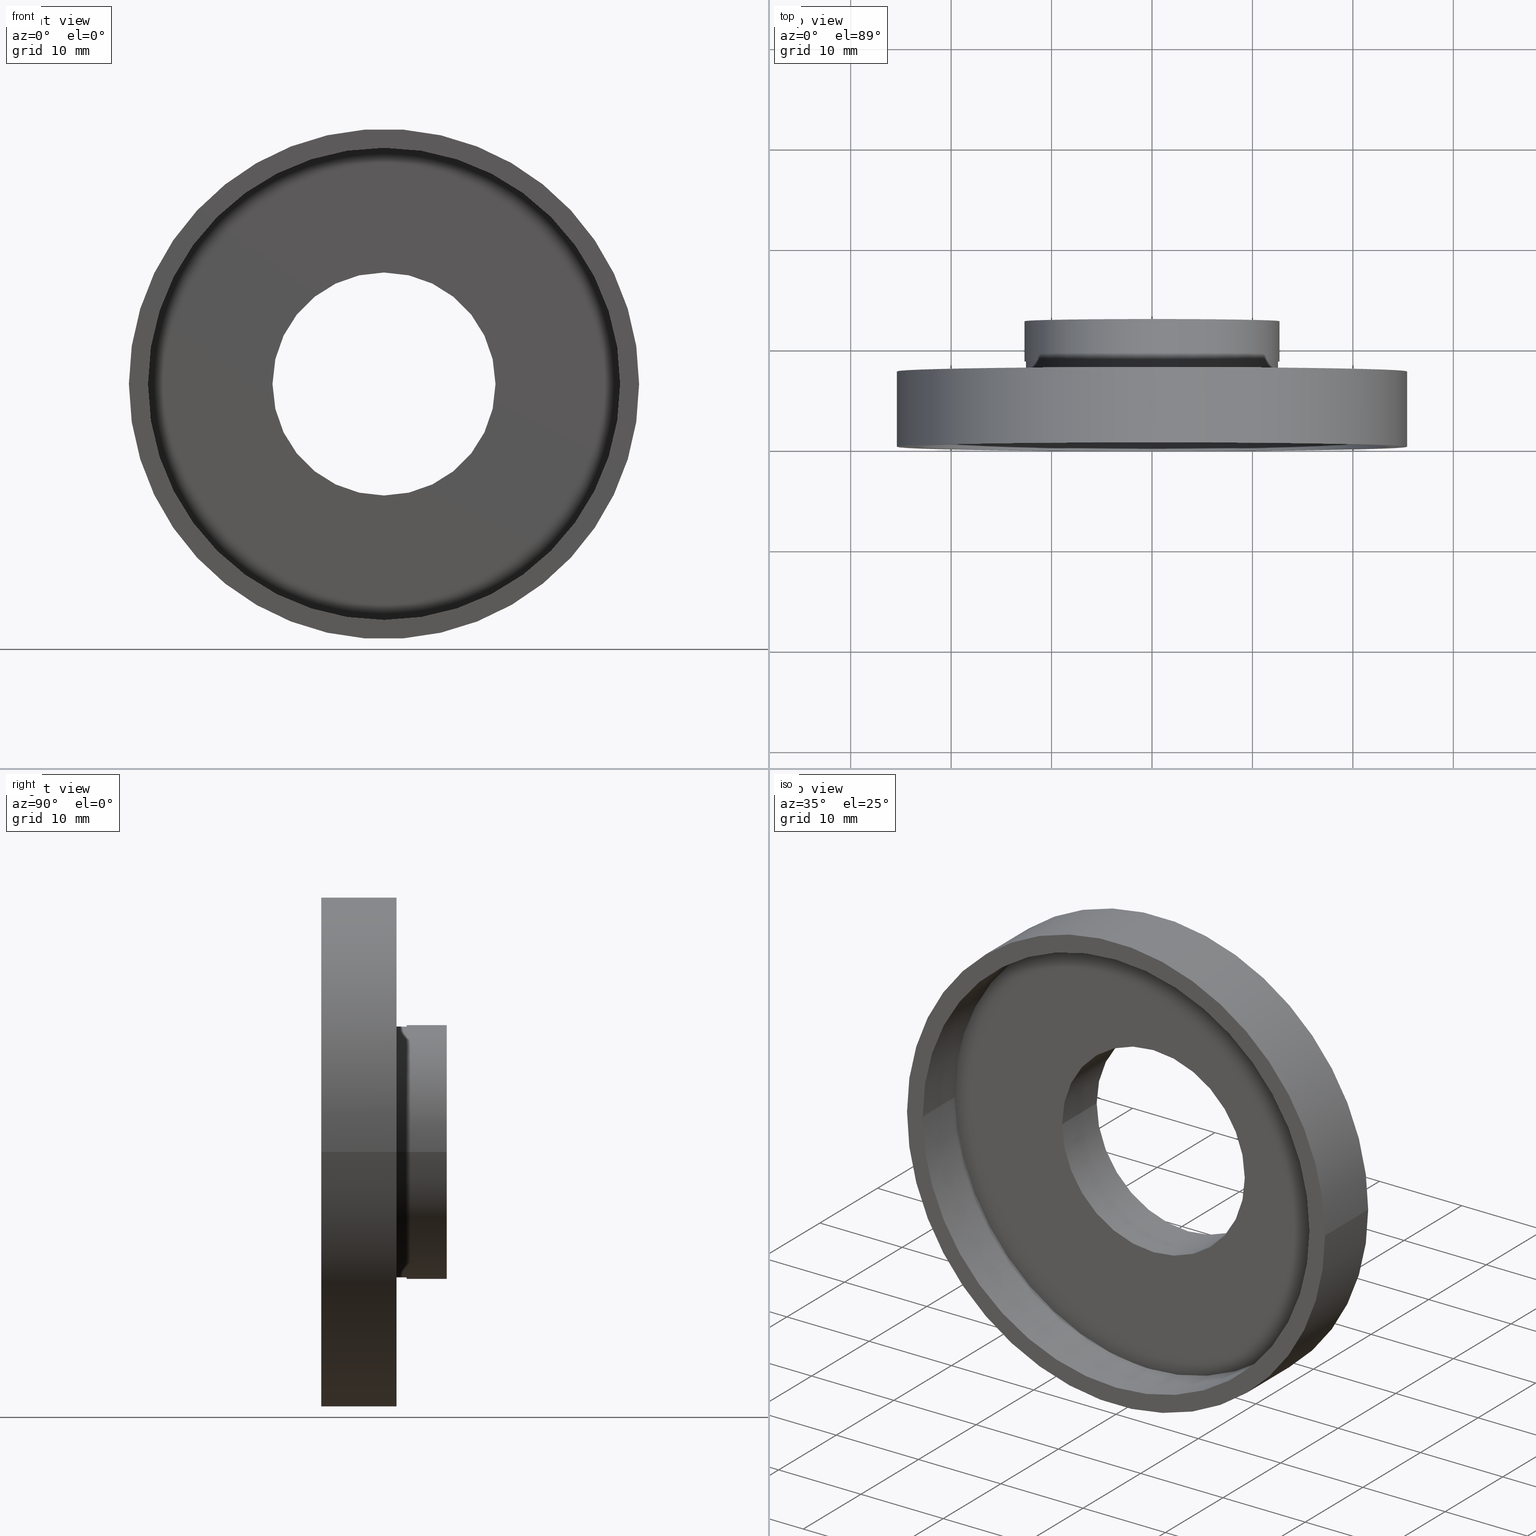
[diagram: canonical four-view strip — front | top / right | iso, engineering-drawing reading convention]
A machine part, canonical four-view strip (front | top / right | iso — engineering-drawing reading convention). The complete STEP part file that produces these views, byte-faithful:
ISO-10303-21;
HEADER;
FILE_DESCRIPTION (( 'STEP AP214' ),
    '1' );
FILE_NAME ('504026.STEP',
    '2019-10-08T02:02:53',
    ( 'user' ),
    ( '΢���й�' ),
    'SwSTEP 2.0',
    'SolidWorks 2016',
    '' );
FILE_SCHEMA (( 'AUTOMOTIVE_DESIGN' ));
ENDSEC;

DATA;
#1 = LINE ( 'NONE', #207, #258 ) ;
#2 = EDGE_CURVE ( 'NONE', #204, #66, #220, .T. ) ;
#3 = MECHANICAL_DESIGN_GEOMETRIC_PRESENTATION_REPRESENTATION (  '', ( #14 ), #191 ) ;
#4 = ORIENTED_EDGE ( 'NONE', *, *, #577, .F. ) ;
#5 = DIRECTION ( 'NONE',  ( -1.224646799147351000E-016, 1.000000000000000000, -0.0000000000000000000 ) ) ;
#6 = VERTEX_POINT ( 'NONE', #382 ) ;
#7 = PRESENTATION_LAYER_ASSIGNMENT (  '', '', ( #14 ) ) ;
#8 = EDGE_LOOP ( 'NONE', ( #272, #91 ) ) ;
#9 = CIRCLE ( 'NONE', #37, 12.69999999999999800 ) ;
#10 = CYLINDRICAL_SURFACE ( 'NONE', #254, 24.10000000000000100 ) ;
#11 = VERTEX_POINT ( 'NONE', #434 ) ;
#12 = DIRECTION ( 'NONE',  ( -1.224646799147351000E-016, 1.000000000000000000, -0.0000000000000000000 ) ) ;
#13 =( NAMED_UNIT ( * ) SI_UNIT ( $, .STERADIAN. ) SOLID_ANGLE_UNIT ( ) );
#14 = STYLED_ITEM ( 'NONE', ( #79 ), #276 ) ;
#15 = CYLINDRICAL_SURFACE ( 'NONE', #158, 12.69999999999999900 ) ;
#16 = FACE_OUTER_BOUND ( 'NONE', #469, .T. ) ;
#17 = UNCERTAINTY_MEASURE_WITH_UNIT (LENGTH_MEASURE( 1.000000000000000100E-005 ), #145, 'distance_accuracy_value', 'NONE');
#18 = EDGE_LOOP ( 'NONE', ( #612, #606, #299, #620 ) ) ;
#19 = EDGE_CURVE ( 'NONE', #41, #582, #275, .T. ) ;
#20 = FILL_AREA_STYLE_COLOUR ( '', #345 ) ;
#21 = VERTEX_POINT ( 'NONE', #179 ) ;
#22 = FACE_OUTER_BOUND ( 'NONE', #211, .T. ) ;
#23 = DIRECTION ( 'NONE',  ( -1.224646799147351000E-016, 1.000000000000000000, -0.0000000000000000000 ) ) ;
#24 = ORIENTED_EDGE ( 'NONE', *, *, #577, .T. ) ;
#25 = EDGE_LOOP ( 'NONE', ( #450, #184, #24, #579 ) ) ;
#26 = CARTESIAN_POINT ( 'NONE',  ( 0.0000000000000000000, 16.88601823708207700, 0.0000000000000000000 ) ) ;
#27 =( GEOMETRIC_REPRESENTATION_CONTEXT ( 3 ) GLOBAL_UNCERTAINTY_ASSIGNED_CONTEXT ( ( #485 ) ) GLOBAL_UNIT_ASSIGNED_CONTEXT ( ( #101, #401, #46 ) ) REPRESENTATION_CONTEXT ( 'NONE', 'WORKASPACE' ) );
#28 =( NAMED_UNIT ( * ) PLANE_ANGLE_UNIT ( ) SI_UNIT ( $, .RADIAN. ) );
#29 = CARTESIAN_POINT ( 'NONE',  ( 11.10000000000000100, 16.88601823708207700, 1.359357947053562400E-015 ) ) ;
#30 = CARTESIAN_POINT ( 'NONE',  ( 12.55000000000000200, 7.500000000000000000, 1.536931732929928400E-015 ) ) ;
#31 = DIRECTION ( 'NONE',  ( -1.000000000000000000, -1.107270303814983000E-016, 0.0000000000000000000 ) ) ;
#32 = EDGE_LOOP ( 'NONE', ( #121, #40, #146, #615 ) ) ;
#33 = DIRECTION ( 'NONE',  ( -1.224646799147351000E-016, 1.000000000000000000, -0.0000000000000000000 ) ) ;
#34 = AXIS2_PLACEMENT_3D ( 'NONE', #500, #151, #455 ) ;
#35 = DIRECTION ( 'NONE',  ( -1.224646799147351000E-016, 1.000000000000000000, 0.0000000000000000000 ) ) ;
#36 = ORIENTED_EDGE ( 'NONE', *, *, #611, .T. ) ;
#37 = AXIS2_PLACEMENT_3D ( 'NONE', #436, #524, #391 ) ;
#38 =( LENGTH_UNIT ( ) NAMED_UNIT ( * ) SI_UNIT ( .MILLI., .METRE. ) );
#39 = FACE_OUTER_BOUND ( 'NONE', #516, .T. ) ;
#40 = ORIENTED_EDGE ( 'NONE', *, *, #488, .T. ) ;
#41 = VERTEX_POINT ( 'NONE', #225 ) ;
#42 = AXIS2_PLACEMENT_3D ( 'NONE', #605, #81, #381 ) ;
#43 = CARTESIAN_POINT ( 'NONE',  ( 11.10000000000000100, 6.499999999999998200, 0.0000000000000000000 ) ) ;
#44 = AXIS2_PLACEMENT_3D ( 'NONE', #198, #278, #566 ) ;
#45 = DIRECTION ( 'NONE',  ( 1.000000000000000000, 1.224646799147351000E-016, 0.0000000000000000000 ) ) ;
#46 =( NAMED_UNIT ( * ) SI_UNIT ( $, .STERADIAN. ) SOLID_ANGLE_UNIT ( ) );
#47 = AXIS2_PLACEMENT_3D ( 'NONE', #131, #569, #520 ) ;
#48 = DIRECTION ( 'NONE',  ( 1.000000000000000000, 1.224646799147351000E-016, 0.0000000000000000000 ) ) ;
#49 = EDGE_LOOP ( 'NONE', ( #266, #64 ) ) ;
#50 = ORIENTED_EDGE ( 'NONE', *, *, #86, .F. ) ;
#51 =( LENGTH_UNIT ( ) NAMED_UNIT ( * ) SI_UNIT ( .MILLI., .METRE. ) );
#52 = AXIS2_PLACEMENT_3D ( 'NONE', #256, #228, #608 ) ;
#53 = FILL_AREA_STYLE_COLOUR ( '', #194 ) ;
#54 = CARTESIAN_POINT ( 'NONE',  ( 12.55000000000000100, 16.88601823708207700, 1.536931732929928400E-015 ) ) ;
#55 = AXIS2_PLACEMENT_3D ( 'NONE', #377, #375, #338 ) ;
#56 = ORIENTED_EDGE ( 'NONE', *, *, #19, .T. ) ;
#57 = AXIS2_PLACEMENT_3D ( 'NONE', #199, #126, #128 ) ;
#58 = CARTESIAN_POINT ( 'NONE',  ( -12.55000000000000100, 16.88601823708207700, 0.0000000000000000000 ) ) ;
#59 = ORIENTED_EDGE ( 'NONE', *, *, #573, .F. ) ;
#60 = DIRECTION ( 'NONE',  ( -1.224646799147351000E-016, 1.000000000000000000, -0.0000000000000000000 ) ) ;
#61 = AXIS2_PLACEMENT_3D ( 'NONE', #428, #398, #31 ) ;
#62 = CYLINDRICAL_SURFACE ( 'NONE', #385, 12.55000000000000100 ) ;
#63 = ORIENTED_EDGE ( 'NONE', *, *, #432, .T. ) ;
#64 = ORIENTED_EDGE ( 'NONE', *, *, #479, .T. ) ;
#65 = CARTESIAN_POINT ( 'NONE',  ( 1.394385078907593200E-015, 5.499999999999996400, 0.0000000000000000000 ) ) ;
#66 = VERTEX_POINT ( 'NONE', #231 ) ;
#67 = DIRECTION ( 'NONE',  ( -1.224646799147351000E-016, 1.000000000000000000, -0.0000000000000000000 ) ) ;
#68 = UNCERTAINTY_MEASURE_WITH_UNIT (LENGTH_MEASURE( 1.000000000000000100E-005 ), #93, 'distance_accuracy_value', 'NONE');
#69 = AXIS2_PLACEMENT_3D ( 'NONE', #528, #523, #478 ) ;
#70 = DIRECTION ( 'NONE',  ( -1.224646799147351000E-016, 1.000000000000000000, -0.0000000000000000000 ) ) ;
#71 = VERTEX_POINT ( 'NONE', #610 ) ;
#72 = CIRCLE ( 'NONE', #61, 23.50000000000000400 ) ;
#73 = ORIENTED_EDGE ( 'NONE', *, *, #482, .F. ) ;
#74 =( GEOMETRIC_REPRESENTATION_CONTEXT ( 3 ) GLOBAL_UNCERTAINTY_ASSIGNED_CONTEXT ( ( #389 ) ) GLOBAL_UNIT_ASSIGNED_CONTEXT ( ( #328, #28, #80 ) ) REPRESENTATION_CONTEXT ( 'NONE', 'WORKASPACE' ) );
#75 = EDGE_LOOP ( 'NONE', ( #326, #373 ) ) ;
#76 = CARTESIAN_POINT ( 'NONE',  ( -11.10000000000000100, 12.49999999999999500, 0.0000000000000000000 ) ) ;
#77 =( NAMED_UNIT ( * ) PLANE_ANGLE_UNIT ( ) SI_UNIT ( $, .RADIAN. ) );
#78 = PRODUCT_DEFINITION ( 'δ֪', '', #113, #598 ) ;
#79 = PRESENTATION_STYLE_ASSIGNMENT (( #429 ) ) ;
#80 =( NAMED_UNIT ( * ) SI_UNIT ( $, .STERADIAN. ) SOLID_ANGLE_UNIT ( ) );
#81 = DIRECTION ( 'NONE',  ( -1.224646799147351000E-016, 1.000000000000000000, -0.0000000000000000000 ) ) ;
#82 = CIRCLE ( 'NONE', #222, 25.39999999999999900 ) ;
#83 = VERTEX_POINT ( 'NONE', #570 ) ;
#84 = ORIENTED_EDGE ( 'NONE', *, *, #482, .T. ) ;
#85 = MECHANICAL_DESIGN_GEOMETRIC_PRESENTATION_REPRESENTATION (  '', ( #97 ), #74 ) ;
#86 = EDGE_CURVE ( 'NONE', #534, #582, #273, .T. ) ;
#87 =( NAMED_UNIT ( * ) PLANE_ANGLE_UNIT ( ) SI_UNIT ( $, .RADIAN. ) );
#88 = VECTOR ( 'NONE', #324, 1000.000000000000000 ) ;
#89 = CYLINDRICAL_SURFACE ( 'NONE', #331, 23.50000000000000000 ) ;
#90 = PLANE ( 'NONE',  #399 ) ;
#91 = ORIENTED_EDGE ( 'NONE', *, *, #137, .T. ) ;
#92 = EDGE_LOOP ( 'NONE', ( #596, #503 ) ) ;
#93 =( LENGTH_UNIT ( ) NAMED_UNIT ( * ) SI_UNIT ( .MILLI., .METRE. ) );
#94 =( NAMED_UNIT ( * ) SI_UNIT ( $, .STERADIAN. ) SOLID_ANGLE_UNIT ( ) );
#95 = PRESENTATION_LAYER_ASSIGNMENT (  '', '', ( #97 ) ) ;
#96 = ORIENTED_EDGE ( 'NONE', *, *, #562, .T. ) ;
#97 = STYLED_ITEM ( 'NONE', ( #189 ), #552 ) ;
#98 = PLANE ( 'NONE',  #261 ) ;
#99 = FACE_OUTER_BOUND ( 'NONE', #219, .T. ) ;
#100 = VERTEX_POINT ( 'NONE', #288 ) ;
#101 =( LENGTH_UNIT ( ) NAMED_UNIT ( * ) SI_UNIT ( .MILLI., .METRE. ) );
#102 = ORIENTED_EDGE ( 'NONE', *, *, #410, .F. ) ;
#103 = CIRCLE ( 'NONE', #116, 24.10000000000000100 ) ;
#104 = AXIS2_PLACEMENT_3D ( 'NONE', #517, #217, #565 ) ;
#105 = CARTESIAN_POINT ( 'NONE',  ( 12.69999999999999900, 8.500000000000000000, 0.0000000000000000000 ) ) ;
#106 = EDGE_LOOP ( 'NONE', ( #107, #167, #538, #560 ) ) ;
#107 = ORIENTED_EDGE ( 'NONE', *, *, #519, .T. ) ;
#108 = DIRECTION ( 'NONE',  ( -1.000000000000000000, -1.439604544379092800E-016, 0.0000000000000000000 ) ) ;
#109 = AXIS2_PLACEMENT_3D ( 'NONE', #372, #70, #425 ) ;
#110 = DIRECTION ( 'NONE',  ( -1.224646799147351000E-016, 1.000000000000000000, -0.0000000000000000000 ) ) ;
#111 = DIRECTION ( 'NONE',  ( -1.224646799147351000E-016, 1.000000000000000000, -0.0000000000000000000 ) ) ;
#112 = AXIS2_PLACEMENT_3D ( 'NONE', #274, #435, #480 ) ;
#113 = PRODUCT_DEFINITION_FORMATION_WITH_SPECIFIED_SOURCE ( '�κ�', '', #548, .NOT_KNOWN. ) ;
#114 = ORIENTED_EDGE ( 'NONE', *, *, #432, .F. ) ;
#115 = CARTESIAN_POINT ( 'NONE',  ( 5.371323195044474300E-016, 12.49999999999999600, 0.0000000000000000000 ) ) ;
#116 = AXIS2_PLACEMENT_3D ( 'NONE', #166, #212, #561 ) ;
#117 = CARTESIAN_POINT ( 'NONE',  ( 24.10000000000000100, 16.88601823708208000, 2.951398785945121300E-015 ) ) ;
#118 = VERTEX_POINT ( 'NONE', #30 ) ;
#119 = CIRCLE ( 'NONE', #141, 25.39999999999999500 ) ;
#120 = CARTESIAN_POINT ( 'NONE',  ( -12.69999999999999900, 12.49999999999999500, 0.0000000000000000000 ) ) ;
#121 = ORIENTED_EDGE ( 'NONE', *, *, #477, .F. ) ;
#122 = FILL_AREA_STYLE ('',( #20 ) ) ;
#123 = ORIENTED_EDGE ( 'NONE', *, *, #486, .F. ) ;
#124 = EDGE_CURVE ( 'NONE', #147, #162, #242, .T. ) ;
#125 = AXIS2_PLACEMENT_3D ( 'NONE', #65, #67, #420 ) ;
#126 = DIRECTION ( 'NONE',  ( -1.224646799147351000E-016, 1.000000000000000000, -0.0000000000000000000 ) ) ;
#127 = CYLINDRICAL_SURFACE ( 'NONE', #390, 25.39999999999999900 ) ;
#128 = DIRECTION ( 'NONE',  ( -1.000000000000000000, -1.382249781654826400E-016, 0.0000000000000000000 ) ) ;
#129 = AXIS2_PLACEMENT_3D ( 'NONE', #559, #269, #597 ) ;
#130 = ORIENTED_EDGE ( 'NONE', *, *, #306, .F. ) ;
#131 = CARTESIAN_POINT ( 'NONE',  ( 1.394385078907593400E-015, 5.499999999999994700, 0.0000000000000000000 ) ) ;
#132 = CARTESIAN_POINT ( 'NONE',  ( 12.69999999999999900, 16.88601823708207700, 1.555301434917138400E-015 ) ) ;
#133 = CARTESIAN_POINT ( 'NONE',  ( 5.371323195044474300E-016, 12.49999999999999600, 0.0000000000000000000 ) ) ;
#134 = UNCERTAINTY_MEASURE_WITH_UNIT (LENGTH_MEASURE( 1.000000000000000100E-005 ), #38, 'distance_accuracy_value', 'NONE');
#135 = VECTOR ( 'NONE', #318, 1000.000000000000000 ) ;
#136 = ORIENTED_EDGE ( 'NONE', *, *, #2, .F. ) ;
#137 = EDGE_CURVE ( 'NONE', #247, #162, #285, .T. ) ;
#138 = SURFACE_SIDE_STYLE ('',( #471 ) ) ;
#139 = AXIS2_PLACEMENT_3D ( 'NONE', #115, #470, #165 ) ;
#140 = DIRECTION ( 'NONE',  ( -1.000000000000000000, -1.365923996832131600E-016, 0.0000000000000000000 ) ) ;
#141 = AXIS2_PLACEMENT_3D ( 'NONE', #513, #558, #268 ) ;
#142 = DIRECTION ( 'NONE',  ( -1.000000000000000000, -1.476360405086644300E-016, 0.0000000000000000000 ) ) ;
#143 = LINE ( 'NONE', #433, #522 ) ;
#144 = PRESENTATION_STYLE_ASSIGNMENT (( #357 ) ) ;
#145 =( LENGTH_UNIT ( ) NAMED_UNIT ( * ) SI_UNIT ( .MILLI., .METRE. ) );
#146 = ORIENTED_EDGE ( 'NONE', *, *, #124, .T. ) ;
#147 = VERTEX_POINT ( 'NONE', #443 ) ;
#148 = PLANE ( 'NONE',  #292 ) ;
#149 = PRODUCT_RELATED_PRODUCT_CATEGORY ( 'part', '', ( #548 ) ) ;
#150 = CARTESIAN_POINT ( 'NONE',  ( 12.55000000000000200, 7.499999999999999100, 0.0000000000000000000 ) ) ;
#151 = DIRECTION ( 'NONE',  ( -1.224646799147351000E-016, 1.000000000000000000, -0.0000000000000000000 ) ) ;
#152 = AXIS2_PLACEMENT_3D ( 'NONE', #319, #12, #366 ) ;
#153 = LINE ( 'NONE', #417, #403 ) ;
#154 = COLOUR_RGB ( '',1.000000000000000000, 1.000000000000000000, 1.000000000000000000 ) ;
#155 = EDGE_LOOP ( 'NONE', ( #96, #180, #252, #114 ) ) ;
#156 = CARTESIAN_POINT ( 'NONE',  ( 1.149455719078123100E-015, 7.499999999999996400, 0.0000000000000000000 ) ) ;
#157 = SURFACE_STYLE_USAGE ( .BOTH. , #464 ) ;
#158 = AXIS2_PLACEMENT_3D ( 'NONE', #313, #5, #589 ) ;
#159 = FACE_BOUND ( 'NONE', #49, .T. ) ;
#160 = AXIS2_PLACEMENT_3D ( 'NONE', #466, #161, #510 ) ;
#161 = DIRECTION ( 'NONE',  ( -1.224646799147351000E-016, 1.000000000000000000, -0.0000000000000000000 ) ) ;
#162 = VERTEX_POINT ( 'NONE', #342 ) ;
#163 = EDGE_LOOP ( 'NONE', ( #521, #188 ) ) ;
#164 = DIRECTION ( 'NONE',  ( -1.000000000000000000, -1.365923996832131600E-016, 0.0000000000000000000 ) ) ;
#165 = DIRECTION ( 'NONE',  ( -1.000000000000000000, -1.365923996832131600E-016, 0.0000000000000000000 ) ) ;
#166 = CARTESIAN_POINT ( 'NONE',  ( 1.271920398992858200E-015, 6.499999999999995600, 0.0000000000000000000 ) ) ;
#167 = ORIENTED_EDGE ( 'NONE', *, *, #477, .T. ) ;
#168 = DIRECTION ( 'NONE',  ( -1.224646799147351000E-016, 1.000000000000000000, -0.0000000000000000000 ) ) ;
#169 = AXIS2_PLACEMENT_3D ( 'NONE', #563, #168, #599 ) ;
#170 =( GEOMETRIC_REPRESENTATION_CONTEXT ( 3 ) GLOBAL_UNCERTAINTY_ASSIGNED_CONTEXT ( ( #444 ) ) GLOBAL_UNIT_ASSIGNED_CONTEXT ( ( #509, #203, #554 ) ) REPRESENTATION_CONTEXT ( 'NONE', 'WORKASPACE' ) );
#171 = APPLICATION_PROTOCOL_DEFINITION ( 'draft international standard', 'automotive_design', 1998, #518 ) ;
#172 = VERTEX_POINT ( 'NONE', #487 ) ;
#173 = FACE_OUTER_BOUND ( 'NONE', #92, .T. ) ;
#174 = MECHANICAL_DESIGN_GEOMETRIC_PRESENTATION_REPRESENTATION (  '', ( #186 ), #170 ) ;
#175 = EDGE_LOOP ( 'NONE', ( #416, #283 ) ) ;
#176 = DIRECTION ( 'NONE',  ( -1.224646799147351000E-016, 1.000000000000000000, -0.0000000000000000000 ) ) ;
#177 = EDGE_LOOP ( 'NONE', ( #388, #440 ) ) ;
#178 = PRESENTATION_LAYER_ASSIGNMENT (  '', '', ( #186 ) ) ;
#179 = CARTESIAN_POINT ( 'NONE',  ( -12.54999999999999900, 8.499999999999996400, 0.0000000000000000000 ) ) ;
#180 = ORIENTED_EDGE ( 'NONE', *, *, #410, .T. ) ;
#181 = DIRECTION ( 'NONE',  ( -1.000000000000000000, -1.365923996832131600E-016, 0.0000000000000000000 ) ) ;
#182 = AXIS2_PLACEMENT_3D ( 'NONE', #105, #260, #587 ) ;
#183 = ORIENTED_EDGE ( 'NONE', *, *, #595, .F. ) ;
#184 = ORIENTED_EDGE ( 'NONE', *, *, #515, .T. ) ;
#185 = CARTESIAN_POINT ( 'NONE',  ( 1.149455719078123100E-015, 7.499999999999996400, 0.0000000000000000000 ) ) ;
#186 = STYLED_ITEM ( 'NONE', ( #468 ), #379 ) ;
#187 =( LENGTH_UNIT ( ) NAMED_UNIT ( * ) SI_UNIT ( .MILLI., .METRE. ) );
#188 = ORIENTED_EDGE ( 'NONE', *, *, #537, .T. ) ;
#189 = PRESENTATION_STYLE_ASSIGNMENT (( #604 ) ) ;
#190 = ORIENTED_EDGE ( 'NONE', *, *, #553, .F. ) ;
#191 =( GEOMETRIC_REPRESENTATION_CONTEXT ( 3 ) GLOBAL_UNCERTAINTY_ASSIGNED_CONTEXT ( ( #68 ) ) GLOBAL_UNIT_ASSIGNED_CONTEXT ( ( #93, #564, #13 ) ) REPRESENTATION_CONTEXT ( 'NONE', 'WORKASPACE' ) );
#192 =( NAMED_UNIT ( * ) PLANE_ANGLE_UNIT ( ) SI_UNIT ( $, .RADIAN. ) );
#193 = DIRECTION ( 'NONE',  ( -1.000000000000000000, -1.224646799147351000E-016, 0.0000000000000000000 ) ) ;
#194 = COLOUR_RGB ( '',1.000000000000000000, 1.000000000000000000, 1.000000000000000000 ) ;
#195 = FACE_OUTER_BOUND ( 'NONE', #600, .T. ) ;
#196 = DIRECTION ( 'NONE',  ( -1.224646799147351000E-016, 1.000000000000000000, -0.0000000000000000000 ) ) ;
#197 = EDGE_LOOP ( 'NONE', ( #257, #384, #314, #575 ) ) ;
#198 = CARTESIAN_POINT ( 'NONE',  ( 0.0000000000000000000, 0.0000000000000000000, 0.0000000000000000000 ) ) ;
#199 = CARTESIAN_POINT ( 'NONE',  ( 1.149455719078122700E-015, 7.499999999999998200, 0.0000000000000000000 ) ) ;
#200 = AXIS2_PLACEMENT_3D ( 'NONE', #504, #501, #311 ) ;
#201 = DIRECTION ( 'NONE',  ( -1.224646799147351000E-016, 1.000000000000000000, -0.0000000000000000000 ) ) ;
#202 = VECTOR ( 'NONE', #370, 1000.000000000000000 ) ;
#203 =( NAMED_UNIT ( * ) PLANE_ANGLE_UNIT ( ) SI_UNIT ( $, .RADIAN. ) );
#204 = VERTEX_POINT ( 'NONE', #295 ) ;
#205 = AXIS2_PLACEMENT_3D ( 'NONE', #457, #196, #459 ) ;
#206 = CARTESIAN_POINT ( 'NONE',  ( -12.54999999999999900, 7.499999999999996400, 0.0000000000000000000 ) ) ;
#207 = CARTESIAN_POINT ( 'NONE',  ( -11.10000000000000100, 16.88601823708207700, 0.0000000000000000000 ) ) ;
#208 = SURFACE_STYLE_FILL_AREA ( #449 ) ;
#209 = CYLINDRICAL_SURFACE ( 'NONE', #205, 12.69999999999999900 ) ;
#210 = CARTESIAN_POINT ( 'NONE',  ( 0.0000000000000000000, 16.88601823708207700, 0.0000000000000000000 ) ) ;
#211 = EDGE_LOOP ( 'NONE', ( #302, #603, #368, #594 ) ) ;
#212 = DIRECTION ( 'NONE',  ( -1.224646799147351000E-016, 1.000000000000000000, -0.0000000000000000000 ) ) ;
#213 = CARTESIAN_POINT ( 'NONE',  ( -12.69999999999999900, 16.88601823708207700, 0.0000000000000000000 ) ) ;
#214 = ORIENTED_EDGE ( 'NONE', *, *, #526, .F. ) ;
#215 = LINE ( 'NONE', #472, #88 ) ;
#216 = SURFACE_STYLE_FILL_AREA ( #301 ) ;
#217 = DIRECTION ( 'NONE',  ( -1.224646799147351000E-016, 1.000000000000000000, -0.0000000000000000000 ) ) ;
#218 = PRODUCT_CONTEXT ( 'NONE', #535, 'mechanical' ) ;
#219 = EDGE_LOOP ( 'NONE', ( #36, #56, #50, #214 ) ) ;
#220 = LINE ( 'NONE', #29, #230 ) ;
#221 = ADVANCED_FACE ( 'NONE', ( #309 ), #329, .F. ) ;
#222 = AXIS2_PLACEMENT_3D ( 'NONE', #156, #201, #551 ) ;
#223 = ADVANCED_FACE ( 'NONE', ( #304 ), #456, .F. ) ;
#224 = CARTESIAN_POINT ( 'NONE',  ( 23.50000000000000400, 5.500000000000000000, 0.0000000000000000000 ) ) ;
#225 = CARTESIAN_POINT ( 'NONE',  ( 12.69999999999999900, 8.500000000000000000, 1.555301434917138400E-015 ) ) ;
#226 =( GEOMETRIC_REPRESENTATION_CONTEXT ( 3 ) GLOBAL_UNCERTAINTY_ASSIGNED_CONTEXT ( ( #549 ) ) GLOBAL_UNIT_ASSIGNED_CONTEXT ( ( #51, #87, #406 ) ) REPRESENTATION_CONTEXT ( 'NONE', 'WORKASPACE' ) );
#227 = ADVANCED_FACE ( 'NONE', ( #418, #431 ), #90, .F. ) ;
#228 = DIRECTION ( 'NONE',  ( -1.224646799147351000E-016, 1.000000000000000000, -0.0000000000000000000 ) ) ;
#229 = VECTOR ( 'NONE', #291, 1000.000000000000000 ) ;
#230 = VECTOR ( 'NONE', #335, 1000.000000000000000 ) ;
#231 = CARTESIAN_POINT ( 'NONE',  ( 11.10000000000000100, 12.49999999999999800, 1.359357947053562400E-015 ) ) ;
#232 = ADVANCED_FACE ( 'NONE', ( #408 ), #127, .T. ) ;
#233 = MECHANICAL_DESIGN_GEOMETRIC_PRESENTATION_REPRESENTATION (  '', ( #267 ), #226 ) ;
#234 = DIRECTION ( 'NONE',  ( -1.224646799147351000E-016, 1.000000000000000000, -0.0000000000000000000 ) ) ;
#235 = DIRECTION ( 'NONE',  ( -1.000000000000000000, -1.365923996832131600E-016, 0.0000000000000000000 ) ) ;
#236 = VERTEX_POINT ( 'NONE', #402 ) ;
#237 = CIRCLE ( 'NONE', #125, 23.50000000000000400 ) ;
#238 = ADVANCED_FACE ( 'NONE', ( #195 ), #62, .T. ) ;
#239 =( NAMED_UNIT ( * ) SI_UNIT ( $, .STERADIAN. ) SOLID_ANGLE_UNIT ( ) );
#240 = VERTEX_POINT ( 'NONE', #320 ) ;
#241 = PRESENTATION_LAYER_ASSIGNMENT (  '', '', ( #267 ) ) ;
#242 = LINE ( 'NONE', #340, #229 ) ;
#243 = ADVANCED_FACE ( 'NONE', ( #571 ), #453, .T. ) ;
#244 = DIRECTION ( 'NONE',  ( -1.224646799147351000E-016, 1.000000000000000000, -0.0000000000000000000 ) ) ;
#245 = AXIS2_PLACEMENT_3D ( 'NONE', #150, #452, #48 ) ;
#246 = DIRECTION ( 'NONE',  ( -1.000000000000000000, 0.0000000000000000000, 0.0000000000000000000 ) ) ;
#247 = VERTEX_POINT ( 'NONE', #307 ) ;
#248 = SURFACE_SIDE_STYLE ('',( #208 ) ) ;
#249 = APPLICATION_PROTOCOL_DEFINITION ( 'draft international standard', 'automotive_design', 1998, #535 ) ;
#250 = EDGE_LOOP ( 'NONE', ( #454, #476 ) ) ;
#251 = ORIENTED_EDGE ( 'NONE', *, *, #508, .F. ) ;
#252 = ORIENTED_EDGE ( 'NONE', *, *, #618, .F. ) ;
#253 = DIRECTION ( 'NONE',  ( -1.000000000000000000, 0.0000000000000000000, 0.0000000000000000000 ) ) ;
#254 = AXIS2_PLACEMENT_3D ( 'NONE', #400, #362, #108 ) ;
#255 = UNCERTAINTY_MEASURE_WITH_UNIT (LENGTH_MEASURE( 1.000000000000000100E-005 ), #395, 'distance_accuracy_value', 'NONE');
#256 = CARTESIAN_POINT ( 'NONE',  ( 1.271920398992858200E-015, 6.499999999999995600, 0.0000000000000000000 ) ) ;
#257 = ORIENTED_EDGE ( 'NONE', *, *, #493, .F. ) ;
#258 = VECTOR ( 'NONE', #60, 1000.000000000000000 ) ;
#259 = ORIENTED_EDGE ( 'NONE', *, *, #2, .T. ) ;
#260 = DIRECTION ( 'NONE',  ( -1.224646799147351000E-016, 1.000000000000000000, 0.0000000000000000000 ) ) ;
#261 = AXIS2_PLACEMENT_3D ( 'NONE', #507, #354, #45 ) ;
#262 = CIRCLE ( 'NONE', #42, 11.10000000000000100 ) ;
#263 = CARTESIAN_POINT ( 'NONE',  ( 23.50000000000000000, 16.88601823708208000, 2.877919977996280300E-015 ) ) ;
#264 = VERTEX_POINT ( 'NONE', #76 ) ;
#265 = ORIENTED_EDGE ( 'NONE', *, *, #568, .T. ) ;
#266 = ORIENTED_EDGE ( 'NONE', *, *, #553, .T. ) ;
#267 = STYLED_ITEM ( 'NONE', ( #144 ), #343 ) ;
#268 = DIRECTION ( 'NONE',  ( -1.000000000000000000, -1.224646799147351000E-016, 0.0000000000000000000 ) ) ;
#269 = DIRECTION ( 'NONE',  ( -1.224646799147351000E-016, 1.000000000000000000, -0.0000000000000000000 ) ) ;
#270 = CIRCLE ( 'NONE', #169, 11.10000000000000000 ) ;
#271 = CYLINDRICAL_SURFACE ( 'NONE', #356, 11.10000000000000100 ) ;
#272 = ORIENTED_EDGE ( 'NONE', *, *, #363, .T. ) ;
#273 = CIRCLE ( 'NONE', #473, 12.69999999999999900 ) ;
#274 = CARTESIAN_POINT ( 'NONE',  ( 2.067940818438636500E-015, -3.469446951953614200E-015, 0.0000000000000000000 ) ) ;
#275 = LINE ( 'NONE', #132, #293 ) ;
#276 = ADVANCED_BREP_SHAPE_REPRESENTATION ( '504026', ( #552, #44 ), #27 ) ;
#277 = SURFACE_SIDE_STYLE ('',( #327 ) ) ;
#278 = DIRECTION ( 'NONE',  ( 0.0000000000000000000, 0.0000000000000000000, 1.000000000000000000 ) ) ;
#279 = DIRECTION ( 'NONE',  ( -1.224646799147351000E-016, 1.000000000000000000, -0.0000000000000000000 ) ) ;
#280 = CIRCLE ( 'NONE', #55, 23.50000000000000000 ) ;
#281 = FACE_OUTER_BOUND ( 'NONE', #18, .T. ) ;
#282 = ADVANCED_FACE ( 'NONE', ( #424 ), #271, .F. ) ;
#283 = ORIENTED_EDGE ( 'NONE', *, *, #404, .T. ) ;
#284 = COLOUR_RGB ( '',1.000000000000000000, 1.000000000000000000, 1.000000000000000000 ) ;
#285 = CIRCLE ( 'NONE', #463, 25.39999999999999900 ) ;
#286 = ADVANCED_FACE ( 'NONE', ( #16 ), #89, .F. ) ;
#287 = FILL_AREA_STYLE_COLOUR ( '', #352 ) ;
#288 = CARTESIAN_POINT ( 'NONE',  ( -24.10000000000000100, 5.499999999999992000, 0.0000000000000000000 ) ) ;
#289 = ADVANCED_FACE ( 'NONE', ( #492 ), #555, .F. ) ;
#290 = CIRCLE ( 'NONE', #160, 24.10000000000000100 ) ;
#291 = DIRECTION ( 'NONE',  ( -1.224646799147351000E-016, 1.000000000000000000, -0.0000000000000000000 ) ) ;
#292 = AXIS2_PLACEMENT_3D ( 'NONE', #43, #35, #193 ) ;
#293 = VECTOR ( 'NONE', #437, 1000.000000000000000 ) ;
#294 = ADVANCED_FACE ( 'NONE', ( #315 ), #300, .T. ) ;
#295 = CARTESIAN_POINT ( 'NONE',  ( 11.10000000000000100, 6.499999999999999100, 1.359357947053562400E-015 ) ) ;
#296 = AXIS2_PLACEMENT_3D ( 'NONE', #305, #536, #246 ) ;
#297 = ADVANCED_FACE ( 'NONE', ( #39, #159 ), #148, .F. ) ;
#298 = FILL_AREA_STYLE_COLOUR ( '', #602 ) ;
#299 = ORIENTED_EDGE ( 'NONE', *, *, #526, .T. ) ;
#300 = CYLINDRICAL_SURFACE ( 'NONE', #296, 12.55000000000000100 ) ;
#301 = FILL_AREA_STYLE ('',( #298 ) ) ;
#302 = ORIENTED_EDGE ( 'NONE', *, *, #515, .F. ) ;
#303 = AXIS2_PLACEMENT_3D ( 'NONE', #495, #540, #580 ) ;
#304 = FACE_OUTER_BOUND ( 'NONE', #489, .T. ) ;
#305 = CARTESIAN_POINT ( 'NONE',  ( 0.0000000000000000000, 16.88601823708207700, 0.0000000000000000000 ) ) ;
#306 = EDGE_CURVE ( 'NONE', #83, #172, #427, .T. ) ;
#307 = CARTESIAN_POINT ( 'NONE',  ( 25.39999999999999900, 7.500000000000000000, 3.110602869834276900E-015 ) ) ;
#308 = CARTESIAN_POINT ( 'NONE',  ( 0.0000000000000000000, 16.88601823708207700, 0.0000000000000000000 ) ) ;
#309 = FACE_OUTER_BOUND ( 'NONE', #25, .T. ) ;
#310 = SURFACE_SIDE_STYLE ('',( #541 ) ) ;
#311 = DIRECTION ( 'NONE',  ( -1.000000000000000000, -1.224646799147351000E-016, 0.0000000000000000000 ) ) ;
#312 = AXIS2_PLACEMENT_3D ( 'NONE', #409, #550, #623 ) ;
#313 = CARTESIAN_POINT ( 'NONE',  ( 0.0000000000000000000, 16.88601823708207700, 0.0000000000000000000 ) ) ;
#314 = ORIENTED_EDGE ( 'NONE', *, *, #573, .T. ) ;
#315 = FACE_OUTER_BOUND ( 'NONE', #155, .T. ) ;
#316 = ORIENTED_EDGE ( 'NONE', *, *, #595, .T. ) ;
#317 = SURFACE_STYLE_FILL_AREA ( #545 ) ;
#318 = DIRECTION ( 'NONE',  ( -1.224646799147351000E-016, 1.000000000000000000, -0.0000000000000000000 ) ) ;
#319 = CARTESIAN_POINT ( 'NONE',  ( 5.371323195044474300E-016, 12.49999999999999600, 0.0000000000000000000 ) ) ;
#320 = CARTESIAN_POINT ( 'NONE',  ( -12.69999999999999600, 8.499999999999996400, 0.0000000000000000000 ) ) ;
#321 = ORIENTED_EDGE ( 'NONE', *, *, #537, .F. ) ;
#322 = PRESENTATION_STYLE_ASSIGNMENT (( #622 ) ) ;
#323 =( GEOMETRIC_REPRESENTATION_CONTEXT ( 3 ) GLOBAL_UNCERTAINTY_ASSIGNED_CONTEXT ( ( #17 ) ) GLOBAL_UNIT_ASSIGNED_CONTEXT ( ( #145, #192, #544 ) ) REPRESENTATION_CONTEXT ( 'NONE', 'WORKASPACE' ) );
#324 = DIRECTION ( 'NONE',  ( -1.224646799147351000E-016, 1.000000000000000000, -0.0000000000000000000 ) ) ;
#325 = MECHANICAL_DESIGN_GEOMETRIC_PRESENTATION_REPRESENTATION (  '', ( #336 ), #323 ) ;
#326 = ORIENTED_EDGE ( 'NONE', *, *, #519, .F. ) ;
#327 = SURFACE_STYLE_FILL_AREA ( #122 ) ;
#328 =( LENGTH_UNIT ( ) NAMED_UNIT ( * ) SI_UNIT ( .MILLI., .METRE. ) );
#329 = CYLINDRICAL_SURFACE ( 'NONE', #447, 24.10000000000000100 ) ;
#330 = ADVANCED_FACE ( 'NONE', ( #448, #173 ), #98, .F. ) ;
#331 = AXIS2_PLACEMENT_3D ( 'NONE', #494, #244, #142 ) ;
#332 = CARTESIAN_POINT ( 'NONE',  ( 12.69999999999999900, 12.49999999999999800, 1.555301434917138400E-015 ) ) ;
#333 = DIRECTION ( 'NONE',  ( -1.000000000000000000, 0.0000000000000000000, 0.0000000000000000000 ) ) ;
#334 = ADVANCED_FACE ( 'NONE', ( #22 ), #10, .F. ) ;
#335 = DIRECTION ( 'NONE',  ( -1.224646799147351000E-016, 1.000000000000000000, -0.0000000000000000000 ) ) ;
#336 = STYLED_ITEM ( 'NONE', ( #359 ), #289 ) ;
#337 = SURFACE_STYLE_FILL_AREA ( #412 ) ;
#338 = DIRECTION ( 'NONE',  ( -1.000000000000000000, -1.224646799147351200E-016, 0.0000000000000000000 ) ) ;
#339 = ADVANCED_FACE ( 'NONE', ( #415, #525 ), #624, .F. ) ;
#340 = CARTESIAN_POINT ( 'NONE',  ( -25.39999999999999900, 16.88601823708207300, 0.0000000000000000000 ) ) ;
#341 = PRESENTATION_LAYER_ASSIGNMENT (  '', '', ( #336 ) ) ;
#342 = CARTESIAN_POINT ( 'NONE',  ( -25.39999999999999900, 7.499999999999992900, 0.0000000000000000000 ) ) ;
#343 = ADVANCED_FACE ( 'NONE', ( #281 ), #209, .T. ) ;
#344 = ORIENTED_EDGE ( 'NONE', *, *, #493, .T. ) ;
#345 = COLOUR_RGB ( '',1.000000000000000000, 1.000000000000000000, 1.000000000000000000 ) ;
#346 = ADVANCED_FACE ( 'NONE', ( #592, #481 ), #585, .F. ) ;
#347 = DIRECTION ( 'NONE',  ( -1.000000000000000000, 0.0000000000000000000, 0.0000000000000000000 ) ) ;
#348 =( GEOMETRIC_REPRESENTATION_CONTEXT ( 3 ) GLOBAL_UNCERTAINTY_ASSIGNED_CONTEXT ( ( #134 ) ) GLOBAL_UNIT_ASSIGNED_CONTEXT ( ( #38, #392, #94 ) ) REPRESENTATION_CONTEXT ( 'NONE', 'WORKASPACE' ) );
#349 = SURFACE_STYLE_USAGE ( .BOTH. , #617 ) ;
#350 = MECHANICAL_DESIGN_GEOMETRIC_PRESENTATION_REPRESENTATION (  '', ( #360 ), #348 ) ;
#351 = SURFACE_STYLE_USAGE ( .BOTH. , #619 ) ;
#352 = COLOUR_RGB ( '',1.000000000000000000, 1.000000000000000000, 1.000000000000000000 ) ;
#353 = FACE_BOUND ( 'NONE', #163, .T. ) ;
#354 = DIRECTION ( 'NONE',  ( 1.224646799147351000E-016, -1.000000000000000000, 0.0000000000000000000 ) ) ;
#355 = FILL_AREA_STYLE_COLOUR ( '', #396 ) ;
#356 = AXIS2_PLACEMENT_3D ( 'NONE', #26, #23, #347 ) ;
#357 = SURFACE_STYLE_USAGE ( .BOTH. , #310 ) ;
#358 = CIRCLE ( 'NONE', #112, 25.39999999999999500 ) ;
#359 = PRESENTATION_STYLE_ASSIGNMENT (( #351 ) ) ;
#360 = STYLED_ITEM ( 'NONE', ( #531 ), #286 ) ;
#361 = EDGE_LOOP ( 'NONE', ( #590, #393 ) ) ;
#362 = DIRECTION ( 'NONE',  ( -1.224646799147351000E-016, 1.000000000000000000, -0.0000000000000000000 ) ) ;
#363 = EDGE_CURVE ( 'NONE', #162, #247, #82, .T. ) ;
#364 = PRESENTATION_LAYER_ASSIGNMENT (  '', '', ( #360 ) ) ;
#365 = CARTESIAN_POINT ( 'NONE',  ( 12.55000000000000200, 8.500000000000000000, 1.536931732929928400E-015 ) ) ;
#366 = DIRECTION ( 'NONE',  ( -1.000000000000000000, -1.562813942321447500E-016, 0.0000000000000000000 ) ) ;
#367 =( GEOMETRIC_REPRESENTATION_CONTEXT ( 3 ) GLOBAL_UNCERTAINTY_ASSIGNED_CONTEXT ( ( #369 ) ) GLOBAL_UNIT_ASSIGNED_CONTEXT ( ( #187, #533, #239 ) ) REPRESENTATION_CONTEXT ( 'NONE', 'WORKASPACE' ) );
#368 = ORIENTED_EDGE ( 'NONE', *, *, #512, .T. ) ;
#369 = UNCERTAINTY_MEASURE_WITH_UNIT (LENGTH_MEASURE( 1.000000000000000100E-005 ), #187, 'distance_accuracy_value', 'NONE');
#370 = DIRECTION ( 'NONE',  ( -1.224646799147351000E-016, 1.000000000000000000, -0.0000000000000000000 ) ) ;
#371 = VECTOR ( 'NONE', #591, 1000.000000000000000 ) ;
#372 = CARTESIAN_POINT ( 'NONE',  ( 1.026991039163387700E-015, 8.499999999999998200, 0.0000000000000000000 ) ) ;
#373 = ORIENTED_EDGE ( 'NONE', *, *, #488, .F. ) ;
#374 = MECHANICAL_DESIGN_GEOMETRIC_PRESENTATION_REPRESENTATION (  '', ( #397 ), #367 ) ;
#375 = DIRECTION ( 'NONE',  ( -1.224646799147351000E-016, 1.000000000000000000, -0.0000000000000000000 ) ) ;
#376 = ADVANCED_FACE ( 'NONE', ( #581, #353 ), #460, .F. ) ;
#377 = CARTESIAN_POINT ( 'NONE',  ( 2.067940818438636500E-015, -3.469446951953614200E-015, 0.0000000000000000000 ) ) ;
#378 = AXIS2_PLACEMENT_3D ( 'NONE', #210, #279, #164 ) ;
#379 = ADVANCED_FACE ( 'NONE', ( #99 ), #15, .T. ) ;
#380 = CARTESIAN_POINT ( 'NONE',  ( 23.50000000000000700, 5.499999999999999100, 2.877919977996281100E-015 ) ) ;
#381 = DIRECTION ( 'NONE',  ( -1.000000000000000000, -1.562813942321447500E-016, 0.0000000000000000000 ) ) ;
#382 = CARTESIAN_POINT ( 'NONE',  ( 24.10000000000000100, 5.499999999999997300, 2.951398785945121300E-015 ) ) ;
#383 = FILL_AREA_STYLE ('',( #446 ) ) ;
#384 = ORIENTED_EDGE ( 'NONE', *, *, #568, .F. ) ;
#385 = AXIS2_PLACEMENT_3D ( 'NONE', #308, #467, #253 ) ;
#386 = CIRCLE ( 'NONE', #139, 12.69999999999999900 ) ;
#387 = DIRECTION ( 'NONE',  ( 1.224646799147351000E-016, -1.000000000000000000, 0.0000000000000000000 ) ) ;
#388 = ORIENTED_EDGE ( 'NONE', *, *, #562, .F. ) ;
#389 = UNCERTAINTY_MEASURE_WITH_UNIT (LENGTH_MEASURE( 1.000000000000000100E-005 ), #328, 'distance_accuracy_value', 'NONE');
#390 = AXIS2_PLACEMENT_3D ( 'NONE', #499, #616, #140 ) ;
#391 = DIRECTION ( 'NONE',  ( -1.000000000000000000, -1.365923996832131900E-016, 0.0000000000000000000 ) ) ;
#392 =( NAMED_UNIT ( * ) PLANE_ANGLE_UNIT ( ) SI_UNIT ( $, .RADIAN. ) );
#393 = ORIENTED_EDGE ( 'NONE', *, *, #498, .F. ) ;
#394 = CIRCLE ( 'NONE', #47, 24.10000000000000100 ) ;
#395 =( LENGTH_UNIT ( ) NAMED_UNIT ( * ) SI_UNIT ( .MILLI., .METRE. ) );
#396 = COLOUR_RGB ( '',1.000000000000000000, 1.000000000000000000, 1.000000000000000000 ) ;
#397 = STYLED_ITEM ( 'NONE', ( #422 ), #282 ) ;
#398 = DIRECTION ( 'NONE',  ( -1.224646799147351000E-016, 1.000000000000000000, -0.0000000000000000000 ) ) ;
#399 = AXIS2_PLACEMENT_3D ( 'NONE', #224, #387, #578 ) ;
#400 = CARTESIAN_POINT ( 'NONE',  ( 0.0000000000000000000, 16.88601823708207700, 0.0000000000000000000 ) ) ;
#401 =( NAMED_UNIT ( * ) PLANE_ANGLE_UNIT ( ) SI_UNIT ( $, .RADIAN. ) );
#402 = CARTESIAN_POINT ( 'NONE',  ( 24.10000000000000100, 6.499999999999998200, 2.951398785945121300E-015 ) ) ;
#403 = VECTOR ( 'NONE', #111, 1000.000000000000000 ) ;
#404 = EDGE_CURVE ( 'NONE', #6, #100, #290, .T. ) ;
#405 = SURFACE_STYLE_FILL_AREA ( #383 ) ;
#406 =( NAMED_UNIT ( * ) SI_UNIT ( $, .STERADIAN. ) SOLID_ANGLE_UNIT ( ) );
#407 = ORIENTED_EDGE ( 'NONE', *, *, #502, .T. ) ;
#408 = FACE_OUTER_BOUND ( 'NONE', #32, .T. ) ;
#409 = CARTESIAN_POINT ( 'NONE',  ( 2.067940818438636500E-015, -3.469446951953614200E-015, 0.0000000000000000000 ) ) ;
#410 = EDGE_CURVE ( 'NONE', #118, #465, #546, .T. ) ;
#411 = AXIS2_PLACEMENT_3D ( 'NONE', #527, #33, #333 ) ;
#412 = FILL_AREA_STYLE ('',( #53 ) ) ;
#413 = VERTEX_POINT ( 'NONE', #206 ) ;
#414 = CIRCLE ( 'NONE', #52, 24.10000000000000100 ) ;
#415 = FACE_BOUND ( 'NONE', #177, .T. ) ;
#416 = ORIENTED_EDGE ( 'NONE', *, *, #584, .T. ) ;
#417 = CARTESIAN_POINT ( 'NONE',  ( 25.39999999999999900, 16.88601823708208000, 3.110602869834276900E-015 ) ) ;
#418 = FACE_BOUND ( 'NONE', #250, .T. ) ;
#419 = LINE ( 'NONE', #58, #135 ) ;
#420 = DIRECTION ( 'NONE',  ( -1.000000000000000000, -1.107270303814983000E-016, 0.0000000000000000000 ) ) ;
#421 = PRESENTATION_LAYER_ASSIGNMENT (  '', '', ( #397 ) ) ;
#422 = PRESENTATION_STYLE_ASSIGNMENT (( #491 ) ) ;
#423 = DIRECTION ( 'NONE',  ( -1.224646799147351000E-016, 1.000000000000000000, -0.0000000000000000000 ) ) ;
#424 = FACE_OUTER_BOUND ( 'NONE', #506, .T. ) ;
#425 = DIRECTION ( 'NONE',  ( -1.000000000000000000, -1.382249781654826400E-016, 0.0000000000000000000 ) ) ;
#426 =( GEOMETRIC_REPRESENTATION_CONTEXT ( 3 ) GLOBAL_UNCERTAINTY_ASSIGNED_CONTEXT ( ( #255 ) ) GLOBAL_UNIT_ASSIGNED_CONTEXT ( ( #395, #77, #607 ) ) REPRESENTATION_CONTEXT ( 'NONE', 'WORKASPACE' ) );
#427 = CIRCLE ( 'NONE', #312, 23.50000000000000000 ) ;
#428 = CARTESIAN_POINT ( 'NONE',  ( 1.394385078907593200E-015, 5.499999999999996400, 0.0000000000000000000 ) ) ;
#429 = SURFACE_STYLE_USAGE ( .BOTH. , #248 ) ;
#430 = VERTEX_POINT ( 'NONE', #556 ) ;
#431 = FACE_OUTER_BOUND ( 'NONE', #175, .T. ) ;
#432 = EDGE_CURVE ( 'NONE', #413, #21, #419, .T. ) ;
#433 = CARTESIAN_POINT ( 'NONE',  ( -23.50000000000000000, 16.88601823708207300, 0.0000000000000000000 ) ) ;
#434 = CARTESIAN_POINT ( 'NONE',  ( 25.39999999999999900, -3.588440821193433400E-016, 3.110602869834276900E-015 ) ) ;
#435 = DIRECTION ( 'NONE',  ( -1.224646799147351000E-016, 1.000000000000000000, -0.0000000000000000000 ) ) ;
#436 = CARTESIAN_POINT ( 'NONE',  ( 1.026991039163387700E-015, 8.499999999999998200, 0.0000000000000000000 ) ) ;
#437 = DIRECTION ( 'NONE',  ( -1.224646799147351000E-016, 1.000000000000000000, -0.0000000000000000000 ) ) ;
#438 = MECHANICAL_DESIGN_GEOMETRIC_PRESENTATION_REPRESENTATION (  '', ( #451 ), #426 ) ;
#439 = SHAPE_DEFINITION_REPRESENTATION ( #530, #276 ) ;
#440 = ORIENTED_EDGE ( 'NONE', *, *, #543, .F. ) ;
#441 = COLOUR_RGB ( '',1.000000000000000000, 1.000000000000000000, 1.000000000000000000 ) ;
#442 = EDGE_LOOP ( 'NONE', ( #183, #123 ) ) ;
#443 = CARTESIAN_POINT ( 'NONE',  ( -25.39999999999999100, -6.580049821787884700E-015, 0.0000000000000000000 ) ) ;
#444 = UNCERTAINTY_MEASURE_WITH_UNIT (LENGTH_MEASURE( 1.000000000000000100E-005 ), #509, 'distance_accuracy_value', 'NONE');
#445 = FILL_AREA_STYLE ('',( #614 ) ) ;
#446 = FILL_AREA_STYLE_COLOUR ( '', #154 ) ;
#447 = AXIS2_PLACEMENT_3D ( 'NONE', #609, #234, #572 ) ;
#448 = FACE_BOUND ( 'NONE', #442, .T. ) ;
#449 = FILL_AREA_STYLE ('',( #287 ) ) ;
#450 = ORIENTED_EDGE ( 'NONE', *, *, #404, .F. ) ;
#451 = STYLED_ITEM ( 'NONE', ( #322 ), #223 ) ;
#452 = DIRECTION ( 'NONE',  ( 1.224646799147351000E-016, -1.000000000000000000, 0.0000000000000000000 ) ) ;
#453 = CYLINDRICAL_SURFACE ( 'NONE', #378, 25.39999999999999900 ) ;
#454 = ORIENTED_EDGE ( 'NONE', *, *, #557, .F. ) ;
#455 = DIRECTION ( 'NONE',  ( -1.000000000000000000, -1.382249781654826400E-016, 0.0000000000000000000 ) ) ;
#456 = CYLINDRICAL_SURFACE ( 'NONE', #411, 11.10000000000000100 ) ;
#457 = CARTESIAN_POINT ( 'NONE',  ( 0.0000000000000000000, 16.88601823708207700, 0.0000000000000000000 ) ) ;
#458 = PRESENTATION_LAYER_ASSIGNMENT (  '', '', ( #451 ) ) ;
#459 = DIRECTION ( 'NONE',  ( -1.000000000000000000, 0.0000000000000000000, 0.0000000000000000000 ) ) ;
#460 = PLANE ( 'NONE',  #182 ) ;
#461 = EDGE_LOOP ( 'NONE', ( #265, #474 ) ) ;
#462 = CIRCLE ( 'NONE', #57, 12.55000000000000100 ) ;
#463 = AXIS2_PLACEMENT_3D ( 'NONE', #185, #532, #235 ) ;
#464 = SURFACE_SIDE_STYLE ('',( #337 ) ) ;
#465 = VERTEX_POINT ( 'NONE', #365 ) ;
#466 = CARTESIAN_POINT ( 'NONE',  ( 1.394385078907593400E-015, 5.499999999999994700, 0.0000000000000000000 ) ) ;
#467 = DIRECTION ( 'NONE',  ( -1.224646799147351000E-016, 1.000000000000000000, -0.0000000000000000000 ) ) ;
#468 = PRESENTATION_STYLE_ASSIGNMENT (( #157 ) ) ;
#469 = EDGE_LOOP ( 'NONE', ( #130, #344, #407, #59 ) ) ;
#470 = DIRECTION ( 'NONE',  ( -1.224646799147351000E-016, 1.000000000000000000, -0.0000000000000000000 ) ) ;
#471 = SURFACE_STYLE_FILL_AREA ( #445 ) ;
#472 = CARTESIAN_POINT ( 'NONE',  ( -24.10000000000000100, 16.88601823708207300, 0.0000000000000000000 ) ) ;
#473 = AXIS2_PLACEMENT_3D ( 'NONE', #133, #484, #181 ) ;
#474 = ORIENTED_EDGE ( 'NONE', *, *, #306, .T. ) ;
#475 = CIRCLE ( 'NONE', #104, 12.55000000000000100 ) ;
#476 = ORIENTED_EDGE ( 'NONE', *, *, #502, .F. ) ;
#477 = EDGE_CURVE ( 'NONE', #11, #247, #153, .T. ) ;
#478 = DIRECTION ( 'NONE',  ( -1.000000000000000000, -1.562813942321447800E-016, 0.0000000000000000000 ) ) ;
#479 = EDGE_CURVE ( 'NONE', #204, #511, #270, .T. ) ;
#480 = DIRECTION ( 'NONE',  ( -1.000000000000000000, -1.224646799147351000E-016, 0.0000000000000000000 ) ) ;
#481 = FACE_BOUND ( 'NONE', #461, .T. ) ;
#482 = EDGE_CURVE ( 'NONE', #511, #264, #1, .T. ) ;
#483 = FILL_AREA_STYLE_COLOUR ( '', #284 ) ;
#484 = DIRECTION ( 'NONE',  ( -1.224646799147351000E-016, 1.000000000000000000, -0.0000000000000000000 ) ) ;
#485 = UNCERTAINTY_MEASURE_WITH_UNIT (LENGTH_MEASURE( 1.000000000000000100E-005 ), #101, 'distance_accuracy_value', 'NONE');
#486 = EDGE_CURVE ( 'NONE', #66, #264, #514, .T. ) ;
#487 = CARTESIAN_POINT ( 'NONE',  ( -23.49999999999999600, -6.347366929949889400E-015, 0.0000000000000000000 ) ) ;
#488 = EDGE_CURVE ( 'NONE', #11, #147, #119, .T. ) ;
#489 = EDGE_LOOP ( 'NONE', ( #588, #259, #496, #73 ) ) ;
#490 = LINE ( 'NONE', #117, #601 ) ;
#491 = SURFACE_STYLE_USAGE ( .BOTH. , #138 ) ;
#492 = FACE_OUTER_BOUND ( 'NONE', #197, .T. ) ;
#493 = EDGE_CURVE ( 'NONE', #83, #583, #613, .T. ) ;
#494 = CARTESIAN_POINT ( 'NONE',  ( 0.0000000000000000000, 16.88601823708207700, 0.0000000000000000000 ) ) ;
#495 = CARTESIAN_POINT ( 'NONE',  ( 0.0000000000000000000, 16.88601823708207700, 0.0000000000000000000 ) ) ;
#496 = ORIENTED_EDGE ( 'NONE', *, *, #486, .T. ) ;
#497 = EDGE_CURVE ( 'NONE', #582, #534, #386, .T. ) ;
#498 = EDGE_CURVE ( 'NONE', #41, #240, #505, .T. ) ;
#499 = CARTESIAN_POINT ( 'NONE',  ( 0.0000000000000000000, 16.88601823708207700, 0.0000000000000000000 ) ) ;
#500 = CARTESIAN_POINT ( 'NONE',  ( 1.026991039163387700E-015, 8.499999999999998200, 0.0000000000000000000 ) ) ;
#501 = DIRECTION ( 'NONE',  ( -1.224646799147351000E-016, 1.000000000000000000, 0.0000000000000000000 ) ) ;
#502 = EDGE_CURVE ( 'NONE', #583, #430, #237, .T. ) ;
#503 = ORIENTED_EDGE ( 'NONE', *, *, #497, .T. ) ;
#504 = CARTESIAN_POINT ( 'NONE',  ( 25.39999999999999900, -1.592040838891564000E-016, 0.0000000000000000000 ) ) ;
#505 = CIRCLE ( 'NONE', #129, 12.69999999999999800 ) ;
#506 = EDGE_LOOP ( 'NONE', ( #136, #190, #84, #316 ) ) ;
#507 = CARTESIAN_POINT ( 'NONE',  ( 11.10000000000000100, 12.49999999999999800, 0.0000000000000000000 ) ) ;
#508 = EDGE_CURVE ( 'NONE', #71, #236, #103, .T. ) ;
#509 =( LENGTH_UNIT ( ) NAMED_UNIT ( * ) SI_UNIT ( .MILLI., .METRE. ) );
#510 = DIRECTION ( 'NONE',  ( -1.000000000000000000, -1.079703408284319800E-016, 0.0000000000000000000 ) ) ;
#511 = VERTEX_POINT ( 'NONE', #593 ) ;
#512 = EDGE_CURVE ( 'NONE', #100, #71, #215, .T. ) ;
#513 = CARTESIAN_POINT ( 'NONE',  ( 2.067940818438636500E-015, -3.469446951953614200E-015, 0.0000000000000000000 ) ) ;
#514 = CIRCLE ( 'NONE', #152, 11.10000000000000100 ) ;
#515 = EDGE_CURVE ( 'NONE', #6, #236, #490, .T. ) ;
#516 = EDGE_LOOP ( 'NONE', ( #251, #4 ) ) ;
#517 = CARTESIAN_POINT ( 'NONE',  ( 1.149455719078122700E-015, 7.499999999999998200, 0.0000000000000000000 ) ) ;
#518 = APPLICATION_CONTEXT ( 'automotive_design' ) ;
#519 = EDGE_CURVE ( 'NONE', #147, #11, #358, .T. ) ;
#520 = DIRECTION ( 'NONE',  ( -1.000000000000000000, -1.079703408284319800E-016, 0.0000000000000000000 ) ) ;
#521 = ORIENTED_EDGE ( 'NONE', *, *, #618, .T. ) ;
#522 = VECTOR ( 'NONE', #176, 1000.000000000000000 ) ;
#523 = DIRECTION ( 'NONE',  ( -1.224646799147351000E-016, 1.000000000000000000, -0.0000000000000000000 ) ) ;
#524 = DIRECTION ( 'NONE',  ( -1.224646799147351000E-016, 1.000000000000000000, -0.0000000000000000000 ) ) ;
#525 = FACE_OUTER_BOUND ( 'NONE', #8, .T. ) ;
#526 = EDGE_CURVE ( 'NONE', #240, #534, #586, .T. ) ;
#527 = CARTESIAN_POINT ( 'NONE',  ( 0.0000000000000000000, 16.88601823708207700, 0.0000000000000000000 ) ) ;
#528 = CARTESIAN_POINT ( 'NONE',  ( 1.271920398992858000E-015, 6.499999999999997300, 0.0000000000000000000 ) ) ;
#529 = VECTOR ( 'NONE', #110, 1000.000000000000000 ) ;
#530 = PRODUCT_DEFINITION_SHAPE ( 'NONE', 'NONE',  #78 ) ;
#531 = PRESENTATION_STYLE_ASSIGNMENT (( #349 ) ) ;
#532 = DIRECTION ( 'NONE',  ( -1.224646799147351000E-016, 1.000000000000000000, -0.0000000000000000000 ) ) ;
#533 =( NAMED_UNIT ( * ) PLANE_ANGLE_UNIT ( ) SI_UNIT ( $, .RADIAN. ) );
#534 = VERTEX_POINT ( 'NONE', #120 ) ;
#535 = APPLICATION_CONTEXT ( 'automotive_design' ) ;
#536 = DIRECTION ( 'NONE',  ( -1.224646799147351000E-016, 1.000000000000000000, -0.0000000000000000000 ) ) ;
#537 = EDGE_CURVE ( 'NONE', #465, #21, #576, .T. ) ;
#538 = ORIENTED_EDGE ( 'NONE', *, *, #363, .F. ) ;
#539 = CIRCLE ( 'NONE', #69, 11.10000000000000000 ) ;
#540 = DIRECTION ( 'NONE',  ( -1.224646799147351000E-016, 1.000000000000000000, -0.0000000000000000000 ) ) ;
#541 = SURFACE_STYLE_FILL_AREA ( #547 ) ;
#542 = CLOSED_SHELL ( 'NONE', ( #243, #294, #379, #223, #221, #286, #346, #289, #227, #334, #297, #282, #330, #343, #376, #238, #339, #232 ) ) ;
#543 = EDGE_CURVE ( 'NONE', #118, #413, #475, .T. ) ;
#544 =( NAMED_UNIT ( * ) SI_UNIT ( $, .STERADIAN. ) SOLID_ANGLE_UNIT ( ) );
#545 = FILL_AREA_STYLE ('',( #483 ) ) ;
#546 = LINE ( 'NONE', #54, #529 ) ;
#547 = FILL_AREA_STYLE ('',( #355 ) ) ;
#548 = PRODUCT ( '504026', '504026', '', ( #218 ) ) ;
#549 = UNCERTAINTY_MEASURE_WITH_UNIT (LENGTH_MEASURE( 1.000000000000000100E-005 ), #51, 'distance_accuracy_value', 'NONE');
#550 = DIRECTION ( 'NONE',  ( -1.224646799147351000E-016, 1.000000000000000000, -0.0000000000000000000 ) ) ;
#551 = DIRECTION ( 'NONE',  ( -1.000000000000000000, -1.365923996832131600E-016, 0.0000000000000000000 ) ) ;
#552 = MANIFOLD_SOLID_BREP ( '��ת1', #542 ) ;
#553 = EDGE_CURVE ( 'NONE', #511, #204, #539, .T. ) ;
#554 =( NAMED_UNIT ( * ) SI_UNIT ( $, .STERADIAN. ) SOLID_ANGLE_UNIT ( ) );
#555 = CYLINDRICAL_SURFACE ( 'NONE', #303, 23.50000000000000000 ) ;
#556 = CARTESIAN_POINT ( 'NONE',  ( -23.50000000000000400, 5.499999999999993800, 0.0000000000000000000 ) ) ;
#557 = EDGE_CURVE ( 'NONE', #430, #583, #72, .T. ) ;
#558 = DIRECTION ( 'NONE',  ( -1.224646799147351000E-016, 1.000000000000000000, -0.0000000000000000000 ) ) ;
#559 = CARTESIAN_POINT ( 'NONE',  ( 1.026991039163387700E-015, 8.499999999999998200, 0.0000000000000000000 ) ) ;
#560 = ORIENTED_EDGE ( 'NONE', *, *, #124, .F. ) ;
#561 = DIRECTION ( 'NONE',  ( -1.000000000000000000, -1.079703408284319800E-016, 0.0000000000000000000 ) ) ;
#562 = EDGE_CURVE ( 'NONE', #413, #118, #462, .T. ) ;
#563 = CARTESIAN_POINT ( 'NONE',  ( 1.271920398992858000E-015, 6.499999999999997300, 0.0000000000000000000 ) ) ;
#564 =( NAMED_UNIT ( * ) PLANE_ANGLE_UNIT ( ) SI_UNIT ( $, .RADIAN. ) );
#565 = DIRECTION ( 'NONE',  ( -1.000000000000000000, -1.382249781654826400E-016, 0.0000000000000000000 ) ) ;
#566 = DIRECTION ( 'NONE',  ( 1.000000000000000000, 0.0000000000000000000, 0.0000000000000000000 ) ) ;
#567 = ORIENTED_EDGE ( 'NONE', *, *, #543, .T. ) ;
#568 = EDGE_CURVE ( 'NONE', #172, #83, #280, .T. ) ;
#569 = DIRECTION ( 'NONE',  ( -1.224646799147351000E-016, 1.000000000000000000, -0.0000000000000000000 ) ) ;
#570 = CARTESIAN_POINT ( 'NONE',  ( 23.50000000000000700, -5.915269739573390000E-016, 2.877919977996281100E-015 ) ) ;
#571 = FACE_OUTER_BOUND ( 'NONE', #106, .T. ) ;
#572 = DIRECTION ( 'NONE',  ( -1.000000000000000000, -1.439604544379092800E-016, 0.0000000000000000000 ) ) ;
#573 = EDGE_CURVE ( 'NONE', #172, #430, #143, .T. ) ;
#574 = SURFACE_SIDE_STYLE ('',( #317 ) ) ;
#575 = ORIENTED_EDGE ( 'NONE', *, *, #557, .T. ) ;
#576 = CIRCLE ( 'NONE', #109, 12.55000000000000100 ) ;
#577 = EDGE_CURVE ( 'NONE', #236, #71, #414, .T. ) ;
#578 = DIRECTION ( 'NONE',  ( 1.000000000000000000, 1.224646799147351000E-016, 0.0000000000000000000 ) ) ;
#579 = ORIENTED_EDGE ( 'NONE', *, *, #512, .F. ) ;
#580 = DIRECTION ( 'NONE',  ( -1.000000000000000000, -1.476360405086644300E-016, 0.0000000000000000000 ) ) ;
#581 = FACE_OUTER_BOUND ( 'NONE', #361, .T. ) ;
#582 = VERTEX_POINT ( 'NONE', #332 ) ;
#583 = VERTEX_POINT ( 'NONE', #380 ) ;
#584 = EDGE_CURVE ( 'NONE', #100, #6, #394, .T. ) ;
#585 = PLANE ( 'NONE',  #200 ) ;
#586 = LINE ( 'NONE', #213, #202 ) ;
#587 = DIRECTION ( 'NONE',  ( -1.000000000000000000, -1.224646799147351000E-016, 0.0000000000000000000 ) ) ;
#588 = ORIENTED_EDGE ( 'NONE', *, *, #479, .F. ) ;
#589 = DIRECTION ( 'NONE',  ( -1.000000000000000000, 0.0000000000000000000, 0.0000000000000000000 ) ) ;
#590 = ORIENTED_EDGE ( 'NONE', *, *, #611, .F. ) ;
#591 = DIRECTION ( 'NONE',  ( -1.224646799147351000E-016, 1.000000000000000000, -0.0000000000000000000 ) ) ;
#592 = FACE_OUTER_BOUND ( 'NONE', #75, .T. ) ;
#593 = CARTESIAN_POINT ( 'NONE',  ( -11.09999999999999800, 6.499999999999995600, 0.0000000000000000000 ) ) ;
#594 = ORIENTED_EDGE ( 'NONE', *, *, #508, .T. ) ;
#595 = EDGE_CURVE ( 'NONE', #264, #66, #262, .T. ) ;
#596 = ORIENTED_EDGE ( 'NONE', *, *, #86, .T. ) ;
#597 = DIRECTION ( 'NONE',  ( -1.000000000000000000, -1.365923996832131900E-016, 0.0000000000000000000 ) ) ;
#598 = PRODUCT_DEFINITION_CONTEXT ( 'detailed design', #518, 'design' ) ;
#599 = DIRECTION ( 'NONE',  ( -1.000000000000000000, -1.562813942321447800E-016, 0.0000000000000000000 ) ) ;
#600 = EDGE_LOOP ( 'NONE', ( #102, #567, #63, #321 ) ) ;
#601 = VECTOR ( 'NONE', #423, 1000.000000000000000 ) ;
#602 = COLOUR_RGB ( '',1.000000000000000000, 1.000000000000000000, 1.000000000000000000 ) ;
#603 = ORIENTED_EDGE ( 'NONE', *, *, #584, .F. ) ;
#604 = SURFACE_STYLE_USAGE ( .BOTH. , #277 ) ;
#605 = CARTESIAN_POINT ( 'NONE',  ( 5.371323195044474300E-016, 12.49999999999999600, 0.0000000000000000000 ) ) ;
#606 = ORIENTED_EDGE ( 'NONE', *, *, #498, .T. ) ;
#607 =( NAMED_UNIT ( * ) SI_UNIT ( $, .STERADIAN. ) SOLID_ANGLE_UNIT ( ) );
#608 = DIRECTION ( 'NONE',  ( -1.000000000000000000, -1.079703408284319800E-016, 0.0000000000000000000 ) ) ;
#609 = CARTESIAN_POINT ( 'NONE',  ( 0.0000000000000000000, 16.88601823708207700, 0.0000000000000000000 ) ) ;
#610 = CARTESIAN_POINT ( 'NONE',  ( -24.10000000000000100, 6.499999999999992900, 0.0000000000000000000 ) ) ;
#611 = EDGE_CURVE ( 'NONE', #240, #41, #9, .T. ) ;
#612 = ORIENTED_EDGE ( 'NONE', *, *, #19, .F. ) ;
#613 = LINE ( 'NONE', #263, #371 ) ;
#614 = FILL_AREA_STYLE_COLOUR ( '', #441 ) ;
#615 = ORIENTED_EDGE ( 'NONE', *, *, #137, .F. ) ;
#616 = DIRECTION ( 'NONE',  ( -1.224646799147351000E-016, 1.000000000000000000, -0.0000000000000000000 ) ) ;
#617 = SURFACE_SIDE_STYLE ('',( #405 ) ) ;
#618 = EDGE_CURVE ( 'NONE', #21, #465, #621, .T. ) ;
#619 = SURFACE_SIDE_STYLE ('',( #216 ) ) ;
#620 = ORIENTED_EDGE ( 'NONE', *, *, #497, .F. ) ;
#621 = CIRCLE ( 'NONE', #34, 12.55000000000000100 ) ;
#622 = SURFACE_STYLE_USAGE ( .BOTH. , #574 ) ;
#623 = DIRECTION ( 'NONE',  ( -1.000000000000000000, -1.224646799147351200E-016, 0.0000000000000000000 ) ) ;
#624 = PLANE ( 'NONE',  #245 ) ;
ENDSEC;
END-ISO-10303-21;
